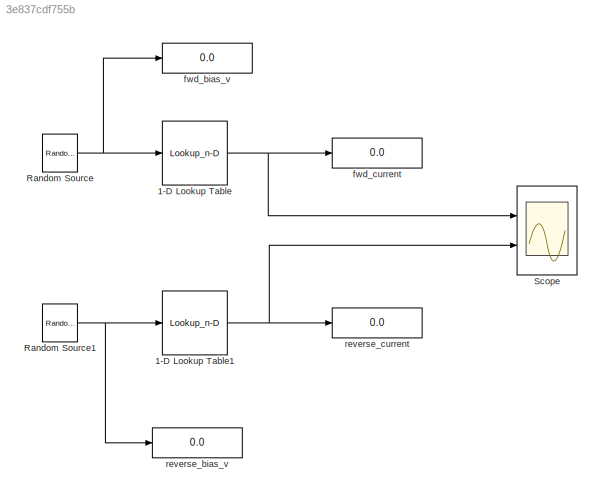
MODEL slx_3e837cdf755b
KIND model
CONFIG AbsTol = auto
CONFIG EnableMultiTasking = off
CONFIG FixedStep = auto
CONFIG MaxStep = auto
CONFIG MinStep = auto
CONFIG RelTol = 1e-3
CONFIG SampleTimeConstraint = Unconstrained
CONFIG SolverName = VariableStepAuto
CONFIG StartTime = 0.0
CONFIG StopTime = 10.0
BLOCK [Lookup_n-D] 1-D Lookup Table
  BreakpointsForDimension1 = fwd_bias_v
  InputPortMap = u0
  InternalRulePriority = Speed
  NumberOfTableDimensions = 1
  Ports = [1, 1]
  RndMeth = Simplest
  Table = fwd_current
BLOCK [Lookup_n-D] 1-D Lookup Table1
  BreakpointsForDimension1 = reverse_bias_v
  InputPortMap = u0
  InternalRulePriority = Speed
  NumberOfTableDimensions = 1
  Ports = [1, 1]
  RndMeth = Simplest
  Table = reverse_current
BLOCK [Reference] Random Source  REF=dspsrcs4/Random
Source
  Ports = [0, 1]
  SourceBlock = dspsrcs4/Random\nSource
  SourceProductBaseCode = DS
  SourceType = Random Source
  UserDataPersistent = on
BLOCK [Reference] Random Source1  REF=dspsrcs4/Random
Source
  Ports = [0, 1]
  SourceBlock = dspsrcs4/Random\nSource
  SourceProductBaseCode = DS
  SourceType = Random Source
  UserDataPersistent = on
BLOCK [Scope] Scope
  Floating = off
  NumInputPorts = 2
  Ports = [2]
  ScopeSpecificationString = Simulink.scopes.TimeScopeBlockCfg('CurrentConfiguration', extmgr.ConfigurationSet(extmgr.Configuration('Core','General UI',true),extmgr.Configuration('Core','Source UI',true),extmgr.Configuration('Sources','WiredSimulink',true),extmgr.Configuration('Visuals','Time Domain',true,'SerializedDisplays',{struct('MinYLimReal','-3.61267','MaxYLimReal','32.51401','YLabelReal','','MinYLimMag','0.00000','Max...<+2091ch>
BLOCK [Display] fwd_bias_v
  Decimation = 1
  Ports = [1]
BLOCK [Display] fwd_current
  Decimation = 1
  Ports = [1]
BLOCK [Display] reverse_bias_v
  Decimation = 1
  Ports = [1]
BLOCK [Display] reverse_current
  Decimation = 1
  Ports = [1]
NET 1-D Lookup Table1:1 -> Scope:2, reverse_current:1
NET 1-D Lookup Table:1 -> Scope:1, fwd_current:1
NET Random Source1:1 -> 1-D Lookup Table1:1, reverse_bias_v:1
NET Random Source:1 -> 1-D Lookup Table:1, fwd_bias_v:1
note: NET lines group one-source signal fan-out (src -> all destinations, sorted); 1:1 wires keep LINE
